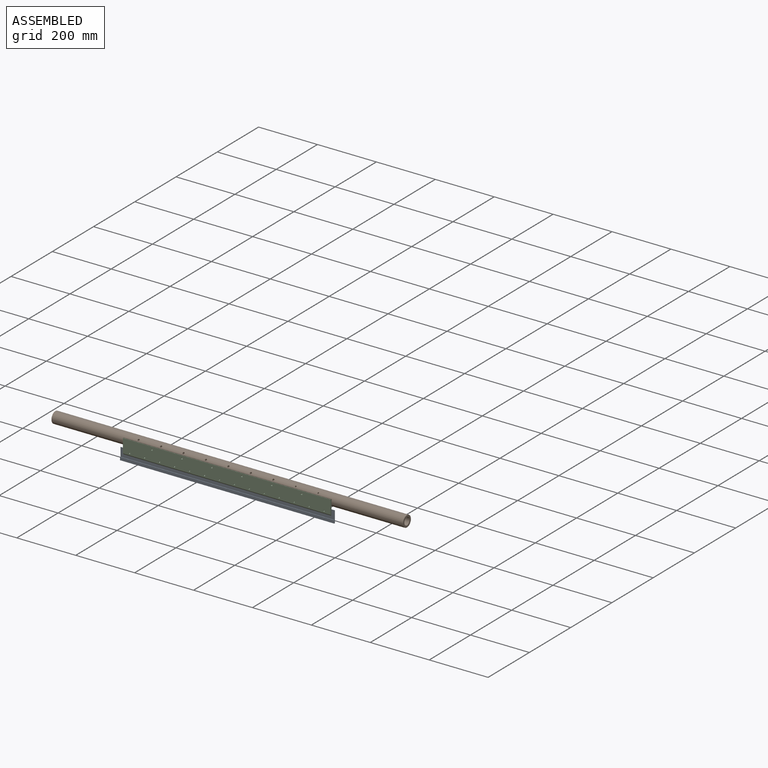
[diagram: assembled view]
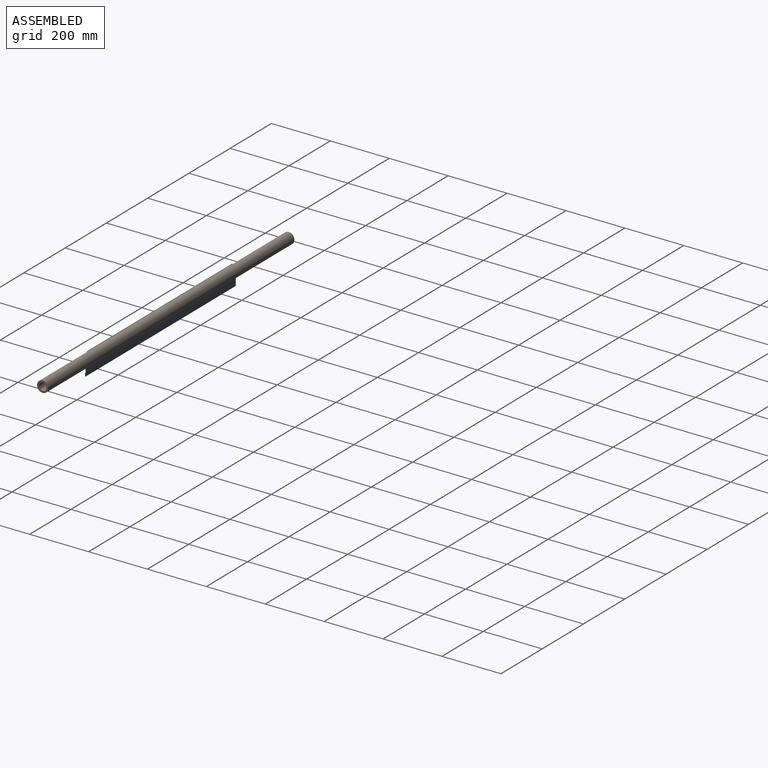
[diagram: assembled view, second angle]
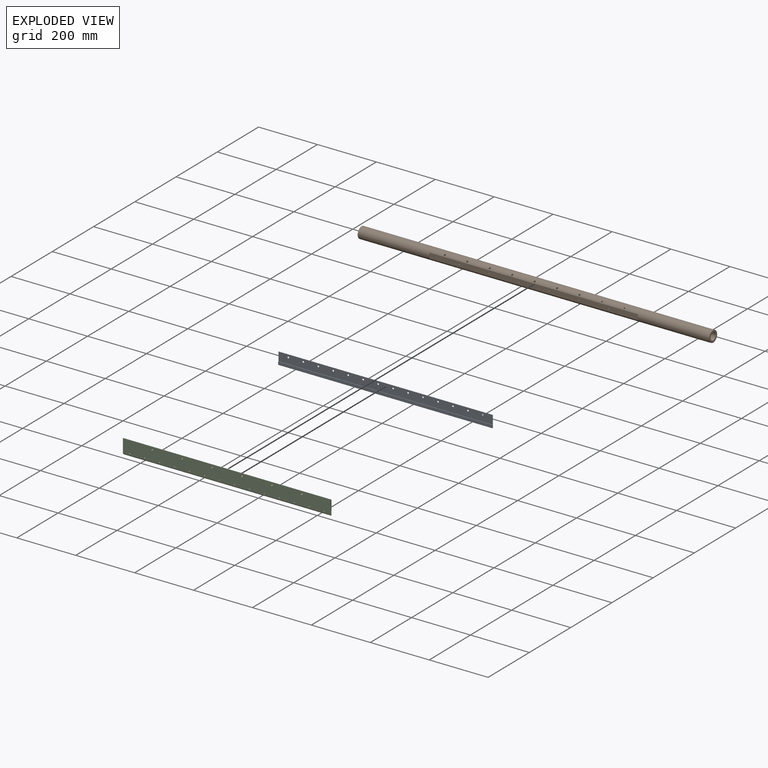
[diagram: exploded view]
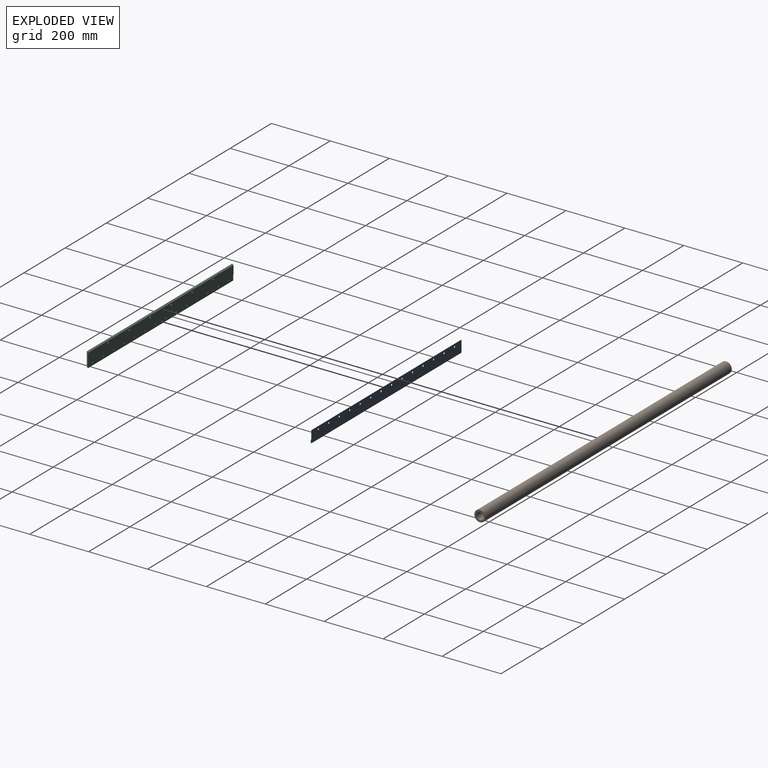
[diagram: exploded view, second angle]
ASSEMBLY  parts=3 mates=4
PART A: 22 faces, bbox 727.2x2.8x39.9 mm
  f0: plane 727.2x29.97mm, normal (0,1,0), area 21455.5mm2, adj f1,f2,f3,f7,f8,f9,f10,f11
  f1: plane 39.88x2.79mm, normal (1,0,0), area 50.5mm2, adj f0,f2,f4,f5,f6,f7
  f2: plane 727.2x0.76mm, normal (0,0,1), area 554.1mm2, adj f0,f1,f3,f5
  f3: plane 39.88x2.79mm, normal (-1,0,0), area 50.5mm2, adj f0,f2,f4,f5,f6,f7
  f4: plane 727.2x2.79mm, normal (0,0,-1), area 2031.8mm2, adj f1,f3,f5,f6
  f5: plane 727.2x39.88mm, normal (0,-1,0), area 28659.1mm2, adj f1,f2,f3,f4,f8,f9,f10,f11
  f6: plane 727.2x9.91mm, normal (0,1,0), area 7203.7mm2, adj f1,f3,f4,f7
  f7: plane 727.2x2.03mm, normal (0,0,1), area 1477.7mm2, adj f0,f1,f3,f6
  f8: cylinder r=2.78mm len=5.56mm, axis (0,1,0), area 13.3mm2, adj f0,f5
  f9: cylinder r=2.78mm len=5.56mm, axis (0,1,0), area 13.3mm2, adj f0,f5
  f10: cylinder r=2.78mm len=5.56mm, axis (0,1,0), area 13.3mm2, adj f0,f5
  f11: cylinder r=2.78mm len=5.56mm, axis (0,1,0), area 13.3mm2, adj f0,f5
  f12: cylinder r=2.78mm len=5.56mm, axis (0,1,0), area 13.3mm2, adj f0,f5
  f13: cylinder r=2.78mm len=5.56mm, axis (0,1,0), area 13.3mm2, adj f0,f5
  f14: cylinder r=2.78mm len=5.56mm, axis (0,1,0), area 13.3mm2, adj f0,f5
  f15: cylinder r=2.78mm len=5.56mm, axis (0,1,0), area 13.3mm2, adj f0,f5
  f16: cylinder r=2.78mm len=5.56mm, axis (0,1,0), area 13.3mm2, adj f0,f5
  f17: cylinder r=2.78mm len=5.56mm, axis (0,1,0), area 13.3mm2, adj f0,f5
  f18: cylinder r=2.78mm len=5.56mm, axis (0,1,0), area 13.3mm2, adj f0,f5
  f19: cylinder r=2.78mm len=5.56mm, axis (0,1,0), area 13.3mm2, adj f0,f5
  f20: cylinder r=2.78mm len=5.56mm, axis (0,1,0), area 13.3mm2, adj f0,f5
  f21: cylinder r=2.78mm len=5.56mm, axis (0,1,0), area 13.3mm2, adj f0,f5
PART B: 22 faces, bbox 1193.8x38.1x38.1 mm
  f0: cylinder r=12.7mm len=1193.8mm, axis (-1,0,0), area 94924.4mm2, adj f2,f3,f7,f8,f9,f10,f11,f12
  f1: cylinder r=19.05mm len=1193.8mm, axis (-1,0,0), area 128979.7mm2, adj f2,f3,f4,f5,f6,f7,f8,f9
  f2: plane 38.1x38.1mm, normal (1,0,0), area 633.4mm2, adj f0,f1
  f3: plane 38.1x38.1mm, normal (-1,0,0), area 633.4mm2, adj f0,f1
  f4: plane 18.47x2.39mm, normal (1,0,0), area 29.8mm2, adj f1,f6
  f5: plane 18.47x2.39mm, normal (-1,0,0), area 29.8mm2, adj f1,f6
  f6: plane 708.15x18.47mm, normal (0,-1,0), area 13001.3mm2, adj f1,f4,f5,f16,f17,f18,f19,f20
  f7: cylinder r=3.17mm len=9.27mm, axis (0,0.71,-0.71), area 128mm2, adj f0,f1
  f8: cylinder r=3.17mm len=9.27mm, axis (0,0.71,-0.71), area 128mm2, adj f0,f1
  f9: cylinder r=3.17mm len=9.27mm, axis (0,0.71,-0.71), area 128mm2, adj f0,f1
  f10: cylinder r=3.17mm len=9.27mm, axis (0,0.71,-0.71), area 128mm2, adj f0,f1
  f11: cylinder r=3.17mm len=9.27mm, axis (0,0.71,-0.71), area 128mm2, adj f0,f1
  f12: cylinder r=3.17mm len=9.27mm, axis (0,0.71,-0.71), area 128mm2, adj f0,f1
  f13: cylinder r=3.17mm len=9.27mm, axis (0,0.71,-0.71), area 128mm2, adj f0,f1
  f14: cylinder r=2.41mm len=8.07mm, axis (0,0.71,-0.71), area 96.9mm2, adj f0,f1
  f15: cylinder r=2.41mm len=8.07mm, axis (0,0.71,-0.71), area 96.9mm2, adj f0,f1
  f16: cylinder r=2.02mm len=4.12mm, axis (0,-1,0), area 51.3mm2, adj f0,f6
  f17: cylinder r=2.02mm len=4.12mm, axis (0,-1,0), area 51.3mm2, adj f0,f6
  f18: cylinder r=2.02mm len=4.12mm, axis (0,-1,0), area 51.3mm2, adj f0,f6
  f19: cylinder r=2.02mm len=4.12mm, axis (0,-1,0), area 51.3mm2, adj f0,f6
  f20: cylinder r=2.02mm len=4.12mm, axis (0,-1,0), area 51.3mm2, adj f0,f6
  f21: cylinder r=2.02mm len=4.12mm, axis (0,-1,0), area 51.3mm2, adj f0,f6
PART C: 30 faces, bbox 704.9x4.8x50.8 mm
  f0: plane 50.8x4.78mm, normal (1,0,0), area 214.2mm2, adj f1,f2,f3,f5,f6,f7,f8,f9
  f1: plane 704.85x0.37mm, normal (0,0,-1), area 261mm2, adj f0,f4,f6,f9
  f2: plane 704.85x28.16mm, normal (0,-1,0), area 19701.3mm2, adj f0,f4,f7,f8,f10,f11,f12,f13
  f3: plane 704.85x47.21mm, normal (0,1,0), area 32949.3mm2, adj f0,f4,f5,f6,f10,f11,f12,f13
  f4: plane 50.8x4.78mm, normal (-1,0,0), area 214.2mm2, adj f1,f2,f3,f5,f6,f7,f8,f9
  f5: plane 704.85x1.18mm, normal (0,0,1), area 833.9mm2, adj f0,f3,f4,f7
  f6: plane 704.85x3.59mm, normal (0,0.71,-0.71), area 3580.6mm2, adj f0,f1,f3,f4
  f7: plane 704.85x3.59mm, normal (0,-0.71,0.71), area 3580.6mm2, adj f0,f2,f4,f5
  f8: plane 704.85x0.81mm, normal (0,0,-1), area 572.9mm2, adj f0,f2,f4,f9
  f9: plane 704.85x19.05mm, normal (0,-1,0), area 13248.1mm2, adj f0,f1,f4,f8,f16,f17,f18,f19
  f10: cylinder r=2.78mm len=5.56mm, axis (0,-1,0), area 83.4mm2, adj f2,f3
  f11: cylinder r=2.78mm len=5.56mm, axis (0,-1,0), area 83.4mm2, adj f2,f3
  f12: cylinder r=2.78mm len=5.56mm, axis (0,-1,0), area 83.4mm2, adj f2,f3
  f13: cylinder r=2.78mm len=5.56mm, axis (0,-1,0), area 83.4mm2, adj f2,f3
  f14: cylinder r=2.78mm len=5.56mm, axis (0,-1,0), area 83.4mm2, adj f2,f3
  f15: cylinder r=2.78mm len=5.56mm, axis (0,-1,0), area 83.4mm2, adj f2,f3
  f16: cylinder r=2.02mm len=4.04mm, axis (0,-1,0), area 50.3mm2, adj f3,f9
  f17: cylinder r=2.02mm len=4.04mm, axis (0,-1,0), area 50.3mm2, adj f3,f9
  f18: cylinder r=2.02mm len=4.04mm, axis (0,-1,0), area 50.3mm2, adj f3,f9
  f19: cylinder r=2.02mm len=4.04mm, axis (0,-1,0), area 50.3mm2, adj f3,f9
  f20: cylinder r=2.02mm len=4.04mm, axis (0,-1,0), area 50.3mm2, adj f3,f9
  f21: cylinder r=2.02mm len=4.04mm, axis (0,-1,0), area 50.3mm2, adj f3,f9
  f22: cylinder r=2.02mm len=4.04mm, axis (0,-1,0), area 50.3mm2, adj f3,f9
  f23: cylinder r=2.02mm len=4.04mm, axis (0,-1,0), area 50.3mm2, adj f3,f9
  f24: cylinder r=2.02mm len=4.04mm, axis (0,-1,0), area 50.3mm2, adj f3,f9
  f25: cylinder r=2.02mm len=4.04mm, axis (0,-1,0), area 50.3mm2, adj f3,f9
  f26: cylinder r=2.02mm len=4.04mm, axis (0,-1,0), area 50.3mm2, adj f3,f9
  f27: cylinder r=2.02mm len=4.04mm, axis (0,-1,0), area 50.3mm2, adj f3,f9
  f28: cylinder r=2.02mm len=4.04mm, axis (0,-1,0), area 50.3mm2, adj f3,f9
  f29: cylinder r=2.02mm len=4.04mm, axis (0,-1,0), area 50.3mm2, adj f3,f9
PLACE A rot(axis=(0,0,1),180deg) t=(-72.17,-46.32,-22.89)mm
PLACE B t=(-72.22,-28.85,19.28)mm fixed
PLACE C rot(axis=(0,0,1),180deg) t=(-72.22,-50.28,3.4)mm
MATE planar B.f20 <-> C.f2  axis (0,-1,0) through (-224.62,-45.51,19.28)mm
MATE cylindrical C.f12 <-> B.f18  axis (0,-1,0) through (-21.42,-50.28,19.28)mm
MATE cylindrical A.f9 <-> C.f17  axis (0,-1,0) through (207.18,-46.32,-12.47)mm
MATE planar A.f15 <-> C.f22  axis (0,-1,0) through (-97.62,-46.32,-12.47)mm
